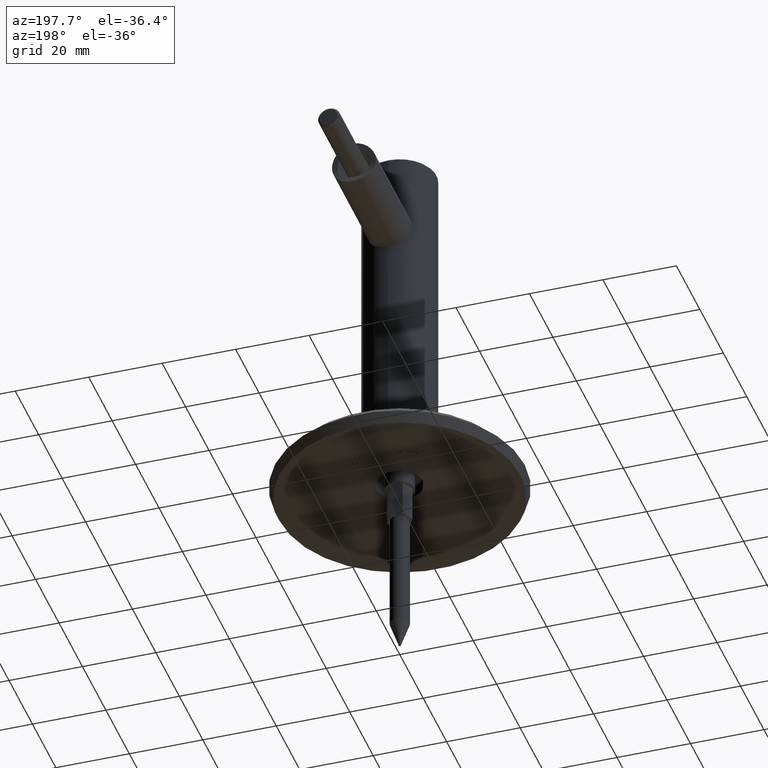
[diagram: clean part render]
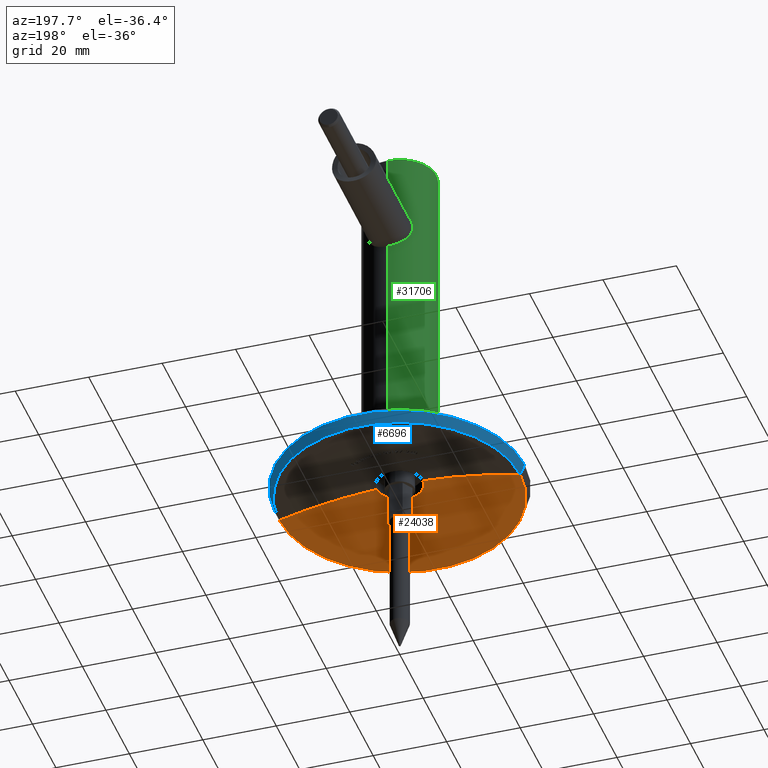
[diagram: same view with three faces highlighted in distinct colors, each labeled with its STEP entity id]
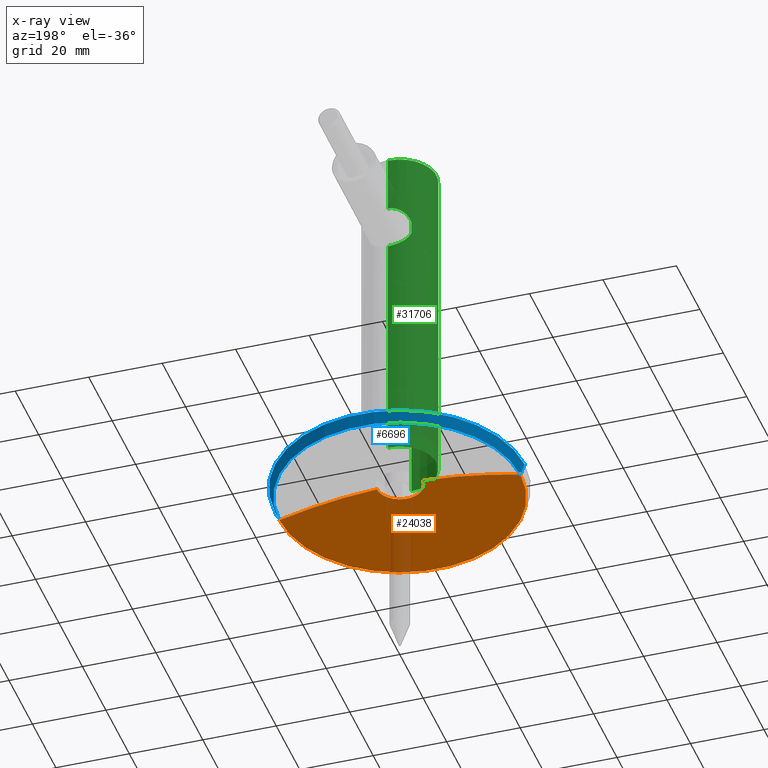
[diagram: x-ray of the same camera — body ghosted, the three highlighted faces saturated]
A machine part, auxiliary view with three faces highlighted in distinct colors.
The next image is the same camera in x-ray (body ghosted, the three faces saturated) — at least one of them is partly hidden behind the body in this view.
Their STEP definitions:

[orange] entity #24038 — the highlighted spherical surface has radius 132.202 mm.
#101 = CARTESIAN_POINT ( 'NONE',  ( 2.769568483248144150E-20, -0.1478206608159504665, 0.000000000000000000 ) ) ;
#691 = VERTEX_POINT ( 'NONE', #21050 ) ;
#723 = CARTESIAN_POINT ( 'NONE',  ( 6.249999999999849898, -0.1478206608159504665, 0.000000000000000000 ) ) ;
#874 = EDGE_CURVE ( 'NONE', #3427, #691, #2351, .T. ) ;
#1104 = ORIENTED_EDGE ( 'NONE', *, *, #1255, .T. ) ;
#1255 = EDGE_CURVE ( 'NONE', #691, #26704, #10010, .T. ) ;
#1810 = CIRCLE ( 'NONE', #8407, 132.2019220182881725 ) ;
#2347 = DIRECTION ( 'NONE',  ( -1.000000000000000000, 0.000000000000000000, 0.000000000000000000 ) ) ;
#2351 = CIRCLE ( 'NONE', #3629, 132.2019220182881725 ) ;
#2448 = DIRECTION ( 'NONE',  ( -1.873600393855974325E-19, 1.000000000000000000, 0.000000000000000000 ) ) ;
#2523 = DIRECTION ( 'NONE',  ( -1.000000000000000000, 0.000000000000000000, -1.224646799147353207E-16 ) ) ;
#3427 = VERTEX_POINT ( 'NONE', #6738 ) ;
#3629 = AXIS2_PLACEMENT_3D ( 'NONE', #17234, #9495, #2523 ) ;
#3926 = ORIENTED_EDGE ( 'NONE', *, *, #14866, .F. ) ;
#5492 = AXIS2_PLACEMENT_3D ( 'NONE', #23301, #11429, #11311 ) ;
#6738 = CARTESIAN_POINT ( 'NONE',  ( -32.83464896222003659, -4.142427981893796129, -4.021084775270976268E-15 ) ) ;
#8225 = FACE_OUTER_BOUND ( 'NONE', #20202, .T. ) ;
#8407 = AXIS2_PLACEMENT_3D ( 'NONE', #12472, #29351, #17415 ) ;
#9107 = CARTESIAN_POINT ( 'NONE',  ( 32.83464896222006502, -4.142427981893796129, 0.000000000000000000 ) ) ;
#9495 = DIRECTION ( 'NONE',  ( 1.224646799147353207E-16, 2.294498725216939218E-35, -1.000000000000000000 ) ) ;
#10010 = CIRCLE ( 'NONE', #18428, 6.249999999999849898 ) ;
#11311 = DIRECTION ( 'NONE',  ( -1.000000000000000000, 0.000000000000000000, 0.000000000000000000 ) ) ;
#11429 = DIRECTION ( 'NONE',  ( -1.873600393855974325E-19, 1.000000000000000000, 0.000000000000000000 ) ) ;
#12472 = CARTESIAN_POINT ( 'NONE',  ( 3.232237634562468506E-14, -132.2019220182881725, 0.000000000000000000 ) ) ;
#12972 = ORIENTED_EDGE ( 'NONE', *, *, #30753, .F. ) ;
#14866 = EDGE_CURVE ( 'NONE', #24275, #26704, #1810, .T. ) ;
#17234 = CARTESIAN_POINT ( 'NONE',  ( 3.232237634562468506E-14, -132.2019220182881725, 0.000000000000000000 ) ) ;
#17415 = DIRECTION ( 'NONE',  ( 1.000000000000000000, 0.000000000000000000, 0.000000000000000000 ) ) ;
#18428 = AXIS2_PLACEMENT_3D ( 'NONE', #101, #2448, #2347 ) ;
#18936 = AXIS2_PLACEMENT_3D ( 'NONE', #27039, #25098, #19968 ) ;
#19968 = DIRECTION ( 'NONE',  ( 1.000000000000000000, 0.000000000000000000, 0.000000000000000000 ) ) ;
#20202 = EDGE_LOOP ( 'NONE', ( #12972, #25092, #1104, #3926 ) ) ;
#21050 = CARTESIAN_POINT ( 'NONE',  ( -6.249999999999849898, -0.1478206608159504665, -2.393244512369030344E-15 ) ) ;
#21585 = SPHERICAL_SURFACE ( 'NONE', #18936, 132.2019220182881725 ) ;
#23301 = CARTESIAN_POINT ( 'NONE',  ( 7.761254698396231712E-19, -4.142427981893799682, 0.000000000000000000 ) ) ;
#24038 = ADVANCED_FACE ( 'NONE', ( #8225 ), #21585, .F. ) ;
#24275 = VERTEX_POINT ( 'NONE', #9107 ) ;
#25092 = ORIENTED_EDGE ( 'NONE', *, *, #874, .T. ) ;
#25098 = DIRECTION ( 'NONE',  ( 0.000000000000000000, 0.000000000000000000, -1.000000000000000000 ) ) ;
#25256 = CIRCLE ( 'NONE', #5492, 32.83464896222004370 ) ;
#26704 = VERTEX_POINT ( 'NONE', #723 ) ;
#27039 = CARTESIAN_POINT ( 'NONE',  ( 3.232237634562468506E-14, -132.2019220182881725, 0.000000000000000000 ) ) ;
#29351 = DIRECTION ( 'NONE',  ( 0.000000000000000000, -0.000000000000000000, 1.000000000000000000 ) ) ;
#30753 = EDGE_CURVE ( 'NONE', #3427, #24275, #25256, .T. ) ;

[blue] entity #6696 — the highlighted conical surface has half-angle 21.287 deg.
#1177 = EDGE_CURVE ( 'NONE', #24275, #3427, #13094, .T. ) ;
#3427 = VERTEX_POINT ( 'NONE', #6738 ) ;
#4342 = DIRECTION ( 'NONE',  ( -1.000000000000000000, 0.000000000000000000, 0.000000000000000000 ) ) ;
#5688 = CONICAL_SURFACE ( 'NONE', #8855, 32.83464896222004370, 0.3715259619799057278 ) ;
#6171 = DIRECTION ( 'NONE',  ( -1.000000000000000000, 0.000000000000000000, 0.000000000000000000 ) ) ;
#6536 = CARTESIAN_POINT ( 'NONE',  ( 7.761254698396231712E-19, -4.142427981893799682, 0.000000000000000000 ) ) ;
#6602 = CARTESIAN_POINT ( 'NONE',  ( 7.761254698396231712E-19, -4.142427981893799682, 0.000000000000000000 ) ) ;
#6696 = ADVANCED_FACE ( 'NONE', ( #30550 ), #5688, .T. ) ;
#6738 = CARTESIAN_POINT ( 'NONE',  ( -32.83464896222003659, -4.142427981893796129, -4.021084775270976268E-15 ) ) ;
#6924 = CARTESIAN_POINT ( 'NONE',  ( -32.83464896222004370, -4.142427981893799682, 0.000000000000000000 ) ) ;
#8778 = ORIENTED_EDGE ( 'NONE', *, *, #24978, .F. ) ;
#8855 = AXIS2_PLACEMENT_3D ( 'NONE', #6602, #19010, #4342 ) ;
#9107 = CARTESIAN_POINT ( 'NONE',  ( 32.83464896222006502, -4.142427981893796129, 0.000000000000000000 ) ) ;
#10899 = CARTESIAN_POINT ( 'NONE',  ( 2.157323450251809556E-19, -1.151432000829118785, 0.000000000000000000 ) ) ;
#11865 = AXIS2_PLACEMENT_3D ( 'NONE', #6536, #19050, #31310 ) ;
#12727 = DIRECTION ( 'NONE',  ( -1.873600393855974325E-19, 1.000000000000000000, 0.000000000000000000 ) ) ;
#13005 = VECTOR ( 'NONE', #21355, 1000.000000000000000 ) ;
#13094 = CIRCLE ( 'NONE', #11865, 32.83464896222004370 ) ;
#13788 = CARTESIAN_POINT ( 'NONE',  ( -34.00000000000002842, -1.151432000829118785, 0.000000000000000000 ) ) ;
#14293 = VERTEX_POINT ( 'NONE', #13788 ) ;
#14395 = ORIENTED_EDGE ( 'NONE', *, *, #30843, .T. ) ;
#14828 = CARTESIAN_POINT ( 'NONE',  ( 34.00000000000002842, -1.151432000829118785, 4.163799117101004504E-15 ) ) ;
#19010 = DIRECTION ( 'NONE',  ( -1.873600393855974325E-19, 1.000000000000000000, 0.000000000000000000 ) ) ;
#19050 = DIRECTION ( 'NONE',  ( -1.873600393855974325E-19, 1.000000000000000000, 0.000000000000000000 ) ) ;
#19800 = AXIS2_PLACEMENT_3D ( 'NONE', #10899, #12727, #6171 ) ;
#20196 = CARTESIAN_POINT ( 'NONE',  ( 32.83464896222004370, -4.142427981893799682, 4.021084775270973901E-15 ) ) ;
#20693 = LINE ( 'NONE', #20196, #31337 ) ;
#21355 = DIRECTION ( 'NONE',  ( -0.3630377064735174630, 0.9317744489298084298, 0.000000000000000000 ) ) ;
#22658 = DIRECTION ( 'NONE',  ( 0.3630377064735174630, 0.9317744489298084298, 4.445929652025895394E-17 ) ) ;
#22792 = EDGE_LOOP ( 'NONE', ( #30514, #27836, #14395, #8778 ) ) ;
#23405 = EDGE_CURVE ( 'NONE', #24275, #25687, #20693, .T. ) ;
#24275 = VERTEX_POINT ( 'NONE', #9107 ) ;
#24978 = EDGE_CURVE ( 'NONE', #25687, #14293, #27707, .T. ) ;
#25687 = VERTEX_POINT ( 'NONE', #14828 ) ;
#27707 = CIRCLE ( 'NONE', #19800, 34.00000000000002842 ) ;
#27836 = ORIENTED_EDGE ( 'NONE', *, *, #1177, .T. ) ;
#29416 = LINE ( 'NONE', #6924, #13005 ) ;
#30514 = ORIENTED_EDGE ( 'NONE', *, *, #23405, .F. ) ;
#30550 = FACE_OUTER_BOUND ( 'NONE', #22792, .T. ) ;
#30843 = EDGE_CURVE ( 'NONE', #3427, #14293, #29416, .T. ) ;
#31310 = DIRECTION ( 'NONE',  ( -1.000000000000000000, 0.000000000000000000, 0.000000000000000000 ) ) ;
#31337 = VECTOR ( 'NONE', #22658, 1000.000000000000000 ) ;

[green] entity #31706 — the highlighted cylindrical surface (partial cylindrical patch) has radius 10 mm, axis along (0, 0, -1).
#42 = CARTESIAN_POINT ( 'NONE',  ( -5.887058039441871671, 8.083627796943861910, 71.59100292581756264 ) ) ;
#523 = CARTESIAN_POINT ( 'NONE',  ( -5.999999999999998224, -7.999999999999994671, 71.89999999999999147 ) ) ;
#920 = CARTESIAN_POINT ( 'NONE',  ( -5.934279884923735260, -8.049290086307204106, 74.45847335496145547 ) ) ;
#950 = DIRECTION ( 'NONE',  ( -0.000000000000000000, 1.224646799147353454E-16, -1.000000000000000000 ) ) ;
#1060 = VERTEX_POINT ( 'NONE', #6307 ) ;
#1340 = CARTESIAN_POINT ( 'NONE',  ( 1.224646799147353651E-15, -10.00000000000000355, 66.90000000000001990 ) ) ;
#1450 = CARTESIAN_POINT ( 'NONE',  ( -1.442266533413710361, -9.901847488652894214, 67.06205422235510127 ) ) ;
#1694 = LINE ( 'NONE', #12977, #31153 ) ;
#1740 = CARTESIAN_POINT ( 'NONE',  ( -2.537553960302298517, 9.674504622938622234, 67.50431735431016023 ) ) ;
#1820 = ORIENTED_EDGE ( 'NONE', *, *, #2126, .F. ) ;
#1929 = CIRCLE ( 'NONE', #18809, 9.999999999999987566 ) ;
#1967 = CARTESIAN_POINT ( 'NONE',  ( -5.999999999999998224, -7.999999999999994671, 74.09999999999999432 ) ) ;
#2126 = EDGE_CURVE ( 'NONE', #21319, #4274, #13446, .T. ) ;
#3059 = ORIENTED_EDGE ( 'NONE', *, *, #29496, .F. ) ;
#3177 = CARTESIAN_POINT ( 'NONE',  ( 0.000000000000000000, 9.999999999999987566, 2.000000000000003109 ) ) ;
#3184 = CARTESIAN_POINT ( 'NONE',  ( -0.7251650388042694129, -9.980085747078263125, 79.06751315753322729 ) ) ;
#3224 = CARTESIAN_POINT ( 'NONE',  ( 0.000000000000000000, 9.999999999999994671, 79.05000000000001137 ) ) ;
#3841 = CARTESIAN_POINT ( 'NONE',  ( 0.000000000000000000, 9.999999999999994671, 1.224646799147352862E-15 ) ) ;
#3921 = AXIS2_PLACEMENT_3D ( 'NONE', #8449, #20338, #8135 ) ;
#3928 = CARTESIAN_POINT ( 'NONE',  ( -5.591957626596481212, -8.291713746578073696, 70.53747936709092414 ) ) ;
#4005 = CARTESIAN_POINT ( 'NONE',  ( -1.601219790535088006, 9.872905687173355815, 67.16226944015627964 ) ) ;
#4112 = CARTESIAN_POINT ( 'NONE',  ( 0.000000000000000000, -2.449293598294700991E-16, 2.000000000000001776 ) ) ;
#4217 = CARTESIAN_POINT ( 'NONE',  ( 4.029265264640274852E-17, 9.999999999999985789, 66.95000000000000284 ) ) ;
#4274 = VERTEX_POINT ( 'NONE', #29145 ) ;
#4319 = CARTESIAN_POINT ( 'NONE',  ( -5.719274872457604353, 8.203360804838672138, 71.01704708012771050 ) ) ;
#4328 = CARTESIAN_POINT ( 'NONE',  ( -6.056865859714450018, -7.957033113640100908, 72.62734759611845448 ) ) ;
#4392 = DIRECTION ( 'NONE',  ( 0.000000000000000000, 1.000000000000000000, 1.224646799147353454E-16 ) ) ;
#4650 = CARTESIAN_POINT ( 'NONE',  ( -6.039532502095488198, 7.970239557477042602, 72.58984917605125986 ) ) ;
#4756 = CARTESIAN_POINT ( 'NONE',  ( -6.009739666643321598, 7.993316245384892937, 73.80647295038041023 ) ) ;
#4867 = CARTESIAN_POINT ( 'NONE',  ( -5.998146223145053746, 8.001431955169667987, 72.18365544772788667 ) ) ;
#5195 = EDGE_CURVE ( 'NONE', #18902, #28693, #6837, .T. ) ;
#5354 = CARTESIAN_POINT ( 'NONE',  ( -4.197526623192091577, -9.080918269210888738, 77.43957995125821014 ) ) ;
#5567 = CARTESIAN_POINT ( 'NONE',  ( -5.934115237488821748, -8.049413571883379248, 71.54062856812086579 ) ) ;
#5760 = EDGE_LOOP ( 'NONE', ( #28292, #11763, #14835, #28686, #27352, #25428, #1820, #15129, #26008, #3059 ) ) ;
#5981 = CARTESIAN_POINT ( 'NONE',  ( -4.197116238931463350, -9.081158167621740773, 68.55989034751918609 ) ) ;
#6084 = CARTESIAN_POINT ( 'NONE',  ( -4.887575619970186303, -8.727801528483553284, 69.33391037137317880 ) ) ;
#6307 = CARTESIAN_POINT ( 'NONE',  ( 0.000000000000000000, 9.999999999999982236, 94.49999999999994316 ) ) ;
#6390 = CARTESIAN_POINT ( 'NONE',  ( -5.838105033781817887, -8.120325416966334586, 74.80375966365103579 ) ) ;
#6479 = CARTESIAN_POINT ( 'NONE',  ( -0.4084737172014512030, 9.999999999999984013, 66.94999999999998863 ) ) ;
#6531 = VECTOR ( 'NONE', #17697, 1000.000000000000000 ) ;
#6584 = CARTESIAN_POINT ( 'NONE',  ( -4.805369897217459219, 8.773264498411423418, 69.30416128083894023 ) ) ;
#6687 = CARTESIAN_POINT ( 'NONE',  ( -3.061321818352618962, 9.521606254377569911, 67.77796966679065349 ) ) ;
#6837 = B_SPLINE_CURVE_WITH_KNOTS ( 'NONE', 3,
 ( #1967, #26708, #18999, #4328, #19113, #14388 ),
 .UNSPECIFIED., .F., .F.,
 ( 4, 2, 4 ),
 ( 0.002051106008994791480, 0.003147755811804935251, 0.004244405614615079023 ),
 .UNSPECIFIED. ) ;
#7000 = CARTESIAN_POINT ( 'NONE',  ( -5.967448871653361131, 8.024465383032296728, 71.98398864228056482 ) ) ;
#7019 = VERTEX_POINT ( 'NONE', #8541 ) ;
#7025 = EDGE_CURVE ( 'NONE', #18799, #1060, #15272, .T. ) ;
#7108 = CARTESIAN_POINT ( 'NONE',  ( -5.729295447384029849, 8.198114526451782069, 74.98317838850394423 ) ) ;
#7186 = CARTESIAN_POINT ( 'NONE',  ( 0.000000000000000000, 0.000000000000000000, 0.000000000000000000 ) ) ;
#7323 = CARTESIAN_POINT ( 'NONE',  ( -4.803483055192234730, 8.774327230309053149, 76.69844423236303044 ) ) ;
#7420 = CARTESIAN_POINT ( 'NONE',  ( -1.019333223322622439, 9.949884950650000448, 78.96688847494657182 ) ) ;
#8135 = DIRECTION ( 'NONE',  ( 0.000000000000000000, -1.000000000000000000, 0.000000000000000000 ) ) ;
#8351 = CARTESIAN_POINT ( 'NONE',  ( -2.932480379695685979, -9.561673299767511125, 67.64827226190982401 ) ) ;
#8449 = CARTESIAN_POINT ( 'NONE',  ( 0.000000000000000000, -1.157291225194248412E-14, 94.49999999999994316 ) ) ;
#8541 = CARTESIAN_POINT ( 'NONE',  ( 2.311154935784771050E-15, -10.00000000000001776, 79.10000000000003695 ) ) ;
#8656 = CARTESIAN_POINT ( 'NONE',  ( -2.777311676397027362, -9.608021108032813729, 67.56603556446367520 ) ) ;
#8889 = VECTOR ( 'NONE', #18701, 1000.000000000000000 ) ;
#9036 = CARTESIAN_POINT ( 'NONE',  ( -2.172773312258156952, 9.762903048491539337, 67.35015363243201136 ) ) ;
#9061 = CARTESIAN_POINT ( 'NONE',  ( -5.999999999999998224, -7.999999999999994671, 74.09999999999999432 ) ) ;
#9572 = CARTESIAN_POINT ( 'NONE',  ( -6.050107430202724679, 7.962173076571636088, 73.40452276754868421 ) ) ;
#9644 = DIRECTION ( 'NONE',  ( -0.000000000000000000, 1.224646799147353454E-16, -1.000000000000000000 ) ) ;
#10163 = CARTESIAN_POINT ( 'NONE',  ( -2.457174186745279876, -9.699437270301512370, 78.59456811138350929 ) ) ;
#10602 = LINE ( 'NONE', #3841, #15946 ) ;
#10916 = CARTESIAN_POINT ( 'NONE',  ( -3.666632961282193293, -9.308008439816980228, 68.11265295109971873 ) ) ;
#10982 = CARTESIAN_POINT ( 'NONE',  ( 1.224646799147353651E-15, -10.00000000000000355, 66.90000000000001990 ) ) ;
#11223 = CARTESIAN_POINT ( 'NONE',  ( -2.290926676104618309, -9.735563720689206946, 67.34369752619788585 ) ) ;
#11542 = CARTESIAN_POINT ( 'NONE',  ( -4.888823053991234069, -8.727140546316645597, 76.66459596162073353 ) ) ;
#11763 = ORIENTED_EDGE ( 'NONE', *, *, #7025, .T. ) ;
#12045 = CARTESIAN_POINT ( 'NONE',  ( -4.009665901186640014, 9.165953874395468048, 77.54708089343206723 ) ) ;
#12632 = CARTESIAN_POINT ( 'NONE',  ( -3.385571134193873455, -9.414909622404426415, 78.08651020804528287 ) ) ;
#12949 = CARTESIAN_POINT ( 'NONE',  ( -0.3649548137492560906, -10.00000000000001243, 79.10000000000005116 ) ) ;
#12977 = CARTESIAN_POINT ( 'NONE',  ( 0.000000000000000000, 9.999999999999994671, 1.224646799147352862E-15 ) ) ;
#13446 = LINE ( 'NONE', #19924, #6531 ) ;
#13473 = LINE ( 'NONE', #18089, #8889 ) ;
#13861 = CARTESIAN_POINT ( 'NONE',  ( -1.985635104201222134, 9.802827385932337378, 67.28158622169588909 ) ) ;
#13957 = CARTESIAN_POINT ( 'NONE',  ( -2.715194575230793550, 9.626026976772982024, 67.58991585138296898 ) ) ;
#14388 = CARTESIAN_POINT ( 'NONE',  ( -5.999999999999998224, -7.999999999999994671, 71.89999999999999147 ) ) ;
#14600 = CARTESIAN_POINT ( 'NONE',  ( -3.231176350246919959, 9.465125515268089984, 78.11855026395286927 ) ) ;
#14835 = ORIENTED_EDGE ( 'NONE', *, *, #19871, .T. ) ;
#14983 = CARTESIAN_POINT ( 'NONE',  ( -1.789271686033191866, -9.844556626790325282, 78.84255116969259802 ) ) ;
#15129 = ORIENTED_EDGE ( 'NONE', *, *, #15743, .F. ) ;
#15272 = CIRCLE ( 'NONE', #3921, 9.999999999999994671 ) ;
#15743 = EDGE_CURVE ( 'NONE', #28693, #21319, #27913, .T. ) ;
#15937 = CARTESIAN_POINT ( 'NONE',  ( -5.838174895473800419, -8.120235270157003526, 71.19730428107988018 ) ) ;
#15946 = VECTOR ( 'NONE', #950, 1000.000000000000000 ) ;
#16049 = CARTESIAN_POINT ( 'NONE',  ( -5.440551407277116169, -8.393070850260533788, 70.21920959023718467 ) ) ;
#16867 = CARTESIAN_POINT ( 'NONE',  ( -5.423591002924559312, 8.403485511692803556, 75.70970173211742349 ) ) ;
#16966 = CARTESIAN_POINT ( 'NONE',  ( -1.988704004959031879, 9.807504354462134089, 78.72762852094189157 ) ) ;
#17203 = CARTESIAN_POINT ( 'NONE',  ( -0.4114436652122799853, 9.993619852167288542, 79.03947135338745511 ) ) ;
#17490 = EDGE_CURVE ( 'NONE', #20119, #18073, #10602, .T. ) ;
#17591 = FACE_OUTER_BOUND ( 'NONE', #5760, .T. ) ;
#17697 = DIRECTION ( 'NONE',  ( -0.000000000000000000, 1.224646799147353454E-16, -1.000000000000000000 ) ) ;
#18073 = VERTEX_POINT ( 'NONE', #3177 ) ;
#18089 = CARTESIAN_POINT ( 'NONE',  ( 1.224646799147352665E-15, -9.999999999999994671, -1.224646799147352862E-15 ) ) ;
#18701 = DIRECTION ( 'NONE',  ( -0.000000000000000000, 1.224646799147353454E-16, -1.000000000000000000 ) ) ;
#18796 = CARTESIAN_POINT ( 'NONE',  ( -4.012844323545345482, 9.164493463990082134, 68.45594532802101639 ) ) ;
#18799 = VERTEX_POINT ( 'NONE', #30604 ) ;
#18809 = AXIS2_PLACEMENT_3D ( 'NONE', #4112, #26273, #28804 ) ;
#18819 = CARTESIAN_POINT ( 'NONE',  ( -5.436598003498990472, -8.395571357975828874, 75.78795442250880399 ) ) ;
#18902 = VERTEX_POINT ( 'NONE', #26234 ) ;
#18999 = CARTESIAN_POINT ( 'NONE',  ( -6.057055091978226002, -7.956889067146800443, 73.36719545397994580 ) ) ;
#19113 = CARTESIAN_POINT ( 'NONE',  ( -6.037620414525905588, -7.971784689105573918, 72.26166898510129499 ) ) ;
#19206 = CARTESIAN_POINT ( 'NONE',  ( -5.837361778259226419, 8.119756217449305424, 71.39768454451899515 ) ) ;
#19424 = CARTESIAN_POINT ( 'NONE',  ( -3.712617640283961240, 9.291548674023582421, 77.79261931526808382 ) ) ;
#19635 = CARTESIAN_POINT ( 'NONE',  ( -2.538213815823214148, 9.674347106947188024, 78.49540841507490541 ) ) ;
#19871 = EDGE_CURVE ( 'NONE', #1060, #21747, #1694, .T. ) ;
#19924 = CARTESIAN_POINT ( 'NONE',  ( 1.224646799147352665E-15, -9.999999999999994671, -1.224646799147352862E-15 ) ) ;
#20007 = CARTESIAN_POINT ( 'NONE',  ( -3.670004657196928033, -9.306630549272247421, 77.88468685917257517 ) ) ;
#20119 = VERTEX_POINT ( 'NONE', #20448 ) ;
#20338 = DIRECTION ( 'NONE',  ( -0.000000000000000000, 1.224646799147336690E-16, -1.000000000000000000 ) ) ;
#20427 = CARTESIAN_POINT ( 'NONE',  ( -5.087154368414275929, -8.611798691936366268, 76.38380675357785776 ) ) ;
#20448 = CARTESIAN_POINT ( 'NONE',  ( 4.029265264640274852E-17, 9.999999999999985789, 66.95000000000000284 ) ) ;
#20779 = EDGE_CURVE ( 'NONE', #20119, #21747, #29162, .T. ) ;
#21062 = CARTESIAN_POINT ( 'NONE',  ( -3.384054400561753884, -9.415323982167938865, 67.91277092575778340 ) ) ;
#21228 = CARTESIAN_POINT ( 'NONE',  ( -4.557547830525052746, 8.906156173625264572, 69.00248699821744935 ) ) ;
#21319 = VERTEX_POINT ( 'NONE', #10982 ) ;
#21747 = VERTEX_POINT ( 'NONE', #3224 ) ;
#21762 = CARTESIAN_POINT ( 'NONE',  ( -6.049945966138784215, 7.962295762615829275, 72.79533331141607277 ) ) ;
#22090 = CARTESIAN_POINT ( 'NONE',  ( -4.558202457909663607, 8.905892511106927145, 76.99701834412350365 ) ) ;
#22466 = CARTESIAN_POINT ( 'NONE',  ( -4.442803994972024384, -8.962425209208769061, 77.19420398614846590 ) ) ;
#22705 = DIRECTION ( 'NONE',  ( -0.000000000000000000, 1.224646799147353454E-16, -1.000000000000000000 ) ) ;
#23009 = CARTESIAN_POINT ( 'NONE',  ( -2.457036283049910619, -9.694869904440782449, 67.41390992390014958 ) ) ;
#23412 = CARTESIAN_POINT ( 'NONE',  ( -5.588327609558264797, -8.294199767979234750, 75.47135870280534675 ) ) ;
#23703 = CARTESIAN_POINT ( 'NONE',  ( -5.235192493834925465, 8.523761456109877344, 69.94327573379142393 ) ) ;
#23804 = CARTESIAN_POINT ( 'NONE',  ( -3.230484222280014084, 9.465388038487756006, 67.88094969924308941 ) ) ;
#24122 = CARTESIAN_POINT ( 'NONE',  ( -3.064673096970015997, 9.520526642615180890, 78.22006286501299144 ) ) ;
#24224 = CARTESIAN_POINT ( 'NONE',  ( -1.609276841110041767, 9.877612619151967976, 78.84584649295071301 ) ) ;
#24562 = CARTESIAN_POINT ( 'NONE',  ( -0.8191968535057885248, 9.968482339578160989, 78.99778431032970616 ) ) ;
#25428 = ORIENTED_EDGE ( 'NONE', *, *, #28782, .F. ) ;
#25583 = CARTESIAN_POINT ( 'NONE',  ( -4.443868385038917346, -8.961860785460709522, 68.80707233755413199 ) ) ;
#26008 = ORIENTED_EDGE ( 'NONE', *, *, #5195, .F. ) ;
#26162 = CARTESIAN_POINT ( 'NONE',  ( -5.420043719548607974, 8.405791692266090465, 70.28310870804065758 ) ) ;
#26234 = CARTESIAN_POINT ( 'NONE',  ( -5.999999999999998224, -7.999999999999994671, 74.09999999999999432 ) ) ;
#26273 = DIRECTION ( 'NONE',  ( -0.000000000000000000, 1.224646799147353454E-16, -1.000000000000000000 ) ) ;
#26275 = CARTESIAN_POINT ( 'NONE',  ( -5.650386224439184701, 8.251162796149689171, 70.82868621148308819 ) ) ;
#26584 = CARTESIAN_POINT ( 'NONE',  ( -0.2050936952828282811, 10.00000000000000000, 79.05000000000005400 ) ) ;
#26701 = CARTESIAN_POINT ( 'NONE',  ( -5.848076573791715305, 8.112340959712476263, 74.60230142844287116 ) ) ;
#26708 = CARTESIAN_POINT ( 'NONE',  ( -6.037779974283359330, -7.971665019287482501, 73.73679706541230416 ) ) ;
#26794 = EDGE_CURVE ( 'NONE', #18799, #7019, #13473, .T. ) ;
#26816 = CARTESIAN_POINT ( 'NONE',  ( -5.235132894256065761, 8.523828446510407275, 76.05701206750914878 ) ) ;
#26832 = AXIS2_PLACEMENT_3D ( 'NONE', #7186, #9644, #4392 ) ;
#26921 = CARTESIAN_POINT ( 'NONE',  ( -2.718732791609665078, 9.625026792267313169, 78.40830560469780153 ) ) ;
#27237 = B_SPLINE_CURVE_WITH_KNOTS ( 'NONE', 3,
 ( #27686, #12949, #3184, #29615, #14983, #10163, #27282, #12632, #20007, #5354, #22466, #11542, #20427, #18819, #23412, #6390, #920, #9061 ),
 .UNSPECIFIED., .F., .F.,
 ( 4, 2, 2, 2, 2, 2, 2, 2, 4 ),
 ( 0.008697927336527631545, 0.009782168780050412224, 0.01086641022357319117, 0.01195065166709597185, 0.01303489311061875253, 0.01411913455414153147, 0.01520337599766431215, 0.01628761744118709109, 0.01737185888470987177 ),
 .UNSPECIFIED. ) ;
#27282 = CARTESIAN_POINT ( 'NONE',  ( -2.776061618095942762, -9.612288853091380147, 78.44317553398471432 ) ) ;
#27352 = ORIENTED_EDGE ( 'NONE', *, *, #17490, .T. ) ;
#27686 = CARTESIAN_POINT ( 'NONE',  ( 2.311154935784771050E-15, -10.00000000000001776, 79.10000000000003695 ) ) ;
#27913 = B_SPLINE_CURVE_WITH_KNOTS ( 'NONE', 3,
 ( #523, #5567, #15937, #3928, #16049, #30666, #6084, #25583, #5981, #10916, #21062, #8351, #8656, #23009, #11223, #28112, #1450, #28219, #27915, #1340 ),
 .UNSPECIFIED., .F., .F.,
 ( 4, 2, 2, 2, 2, 2, 2, 2, 2, 4 ),
 ( -0.008711526542428404962, -0.007622585724624845668, -0.006533644906821286374, -0.005444704089017727081, -0.004355763271214167787, -0.003266822453410608493, -0.002722352044508840122, -0.002177881635607072618, -0.001088940817803535875, 1.734723475976807094E-18 ),
 .UNSPECIFIED. ) ;
#27915 = CARTESIAN_POINT ( 'NONE',  ( -0.3687708561522867190, -9.999999999999994671, 66.90000000000000568 ) ) ;
#28112 = CARTESIAN_POINT ( 'NONE',  ( -1.787012622460111277, -9.845037829623528580, 67.15662796590194716 ) ) ;
#28219 = CARTESIAN_POINT ( 'NONE',  ( -0.7345510077027553875, -9.979336213347544060, 66.93371879742299768 ) ) ;
#28292 = ORIENTED_EDGE ( 'NONE', *, *, #26794, .F. ) ;
#28389 = CARTESIAN_POINT ( 'NONE',  ( -0.8103770617381556018, 9.975074806668047245, 66.99094149490500172 ) ) ;
#28488 = CARTESIAN_POINT ( 'NONE',  ( -1.403813005560764937, 9.902980164608129243, 67.11165916234634210 ) ) ;
#28686 = ORIENTED_EDGE ( 'NONE', *, *, #20779, .F. ) ;
#28693 = VERTEX_POINT ( 'NONE', #30636 ) ;
#28782 = EDGE_CURVE ( 'NONE', #4274, #18073, #1929, .T. ) ;
#28804 = DIRECTION ( 'NONE',  ( 0.000000000000000000, 1.000000000000000000, 1.301042606982607046E-16 ) ) ;
#29126 = CARTESIAN_POINT ( 'NONE',  ( 0.000000000000000000, 9.999999999999994671, 79.05000000000001137 ) ) ;
#29145 = CARTESIAN_POINT ( 'NONE',  ( 1.224646799147352270E-15, -9.999999999999987566, 2.000000000000000444 ) ) ;
#29162 = B_SPLINE_CURVE_WITH_KNOTS ( 'NONE', 3,
 ( #4217, #6479, #28389, #28488, #4005, #13861, #9036, #1740, #13957, #6687, #23804, #30947, #18796, #21228, #6584, #23703, #26162, #26275, #4319, #19206, #42, #7000, #4867, #4650, #21762, #9572, #4756, #26701, #7108, #16867, #26816, #7323, #22090, #12045, #19424, #14600, #24122, #26921, #19635, #16966, #24224, #7420, #24562, #17203, #26584, #29126 ),
 .UNSPECIFIED., .F., .F.,
 ( 4, 2, 2, 2, 2, 2, 2, 2, 2, 2, 2, 2, 2, 2, 2, 2, 2, 2, 2, 2, 2, 2, 4 ),
 ( 0.01941990436530885780, 0.02063116917293930652, 0.02123680157675453262, 0.02184243398056976218, 0.02244806638438499174, 0.02305369878820021784, 0.02426496359583067697, 0.02547622840346113263, 0.02668749321109158829, 0.02729312561490679703, 0.02789875801872200578, 0.02850439042253721453, 0.02911002282635242328, 0.03032128763398288587, 0.03153255244161334847, 0.03274381724924380066, 0.03395508205687426673, 0.03516634686450471892, 0.03577197926831995889, 0.03637761167213518498, 0.03758887647976563023, 0.03819450888358084939, 0.03880014128739607548 ),
 .UNSPECIFIED. ) ;
#29496 = EDGE_CURVE ( 'NONE', #7019, #18902, #27237, .T. ) ;
#29615 = CARTESIAN_POINT ( 'NONE',  ( -1.436448137794693158, -9.902756818177696374, 78.93946100229382523 ) ) ;
#30542 = CYLINDRICAL_SURFACE ( 'NONE', #26832, 9.999999999999994671 ) ;
#30604 = CARTESIAN_POINT ( 'NONE',  ( 1.224646799147353256E-15, -10.00000000000000711, 94.49999999999994316 ) ) ;
#30636 = CARTESIAN_POINT ( 'NONE',  ( -5.999999999999998224, -7.999999999999994671, 71.89999999999999147 ) ) ;
#30666 = CARTESIAN_POINT ( 'NONE',  ( -5.086953068162411107, -8.611976915611835537, 69.61543157838886486 ) ) ;
#30947 = CARTESIAN_POINT ( 'NONE',  ( -3.716010006842547231, 9.290299550995962719, 68.20974042484496636 ) ) ;
#31153 = VECTOR ( 'NONE', #22705, 1000.000000000000000 ) ;
#31706 = ADVANCED_FACE ( 'NONE', ( #17591 ), #30542, .T. ) ;